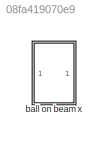
MODEL slx_08fa419070e9
KIND model
CONFIG AbsTol = auto
CONFIG EnableMultiTasking = off
CONFIG FixedStep = auto
CONFIG MaxStep = auto
CONFIG MinStep = auto
CONFIG RelTol = 1e-3
CONFIG SampleTimeConstraint = Unconstrained
CONFIG Solver = VariableStepAuto
CONFIG SolverName = VariableStepAuto
CONFIG StartTime = 0.0
CONFIG StopTime = 100.0
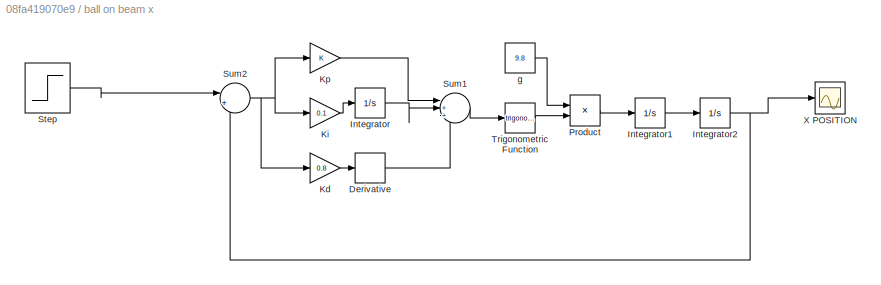
BLOCK [SubSystem] ball on beam x
  Ports = []
  RequestExecContextInheritance = off
BLOCK [Derivative] ball on beam x/Derivative
BLOCK [Integrator] ball on beam x/Integrator
  Ports = [1, 1]
BLOCK [Integrator] ball on beam x/Integrator1
  Ports = [1, 1]
BLOCK [Integrator] ball on beam x/Integrator2
  Ports = [1, 1]
BLOCK [Gain] ball on beam x/Kd
  Gain = 0.8
BLOCK [Gain] ball on beam x/Ki
  Gain = 0.1
BLOCK [Gain] ball on beam x/Kp
BLOCK [Product] ball on beam x/Product
  Ports = [2, 1]
BLOCK [Step] ball on beam x/Step
  After = 2
  SampleTime = 0.1
BLOCK [Sum] ball on beam x/Sum1
  Inputs = |+++
  Ports = [3, 1]
BLOCK [Sum] ball on beam x/Sum2
  Inputs = |+-
  Ports = [2, 1]
BLOCK [Trigonometry] ball on beam x/Trigonometric Function
  Ports = [1, 1]
BLOCK [Scope] ball on beam x/X POSITION
  Floating = off
  NumInputPorts = 1
  Ports = [1]
  ScopeSpecificationString = Simulink.scopes.TimeScopeBlockCfg('CurrentConfiguration', extmgr.ConfigurationSet(extmgr.Configuration('Core','General UI',true),extmgr.Configuration('Core','Source UI',true),extmgr.Configuration('Sources','WiredSimulink',true),extmgr.Configuration('Visuals','Time Domain',true,'SerializedDisplays',{struct('MinYLimReal','-4.57443','MaxYLimReal','11.61873','YLabelReal','','MinYLimMag','0.00000','Max...<+1413ch>
BLOCK [Constant] ball on beam x/g
  Value = 9.8
LINE ball on beam x/Derivative:1 -> ball on beam x/Sum1:3
LINE ball on beam x/Integrator1:1 -> ball on beam x/Integrator2:1
NET ball on beam x/Integrator2:1 -> ball on beam x/Sum2:2, ball on beam x/X POSITION:1
LINE ball on beam x/Integrator:1 -> ball on beam x/Sum1:2
LINE ball on beam x/Kd:1 -> ball on beam x/Derivative:1
LINE ball on beam x/Ki:1 -> ball on beam x/Integrator:1
LINE ball on beam x/Kp:1 -> ball on beam x/Sum1:1
LINE ball on beam x/Product:1 -> ball on beam x/Integrator1:1
LINE ball on beam x/Step:1 -> ball on beam x/Sum2:1
LINE ball on beam x/Sum1:1 -> ball on beam x/Trigonometric Function:1
NET ball on beam x/Sum2:1 -> ball on beam x/Kd:1, ball on beam x/Ki:1, ball on beam x/Kp:1
LINE ball on beam x/Trigonometric Function:1 -> ball on beam x/Product:2
LINE ball on beam x/g:1 -> ball on beam x/Product:1
note: NET lines group one-source signal fan-out (src -> all destinations, sorted); 1:1 wires keep LINE
